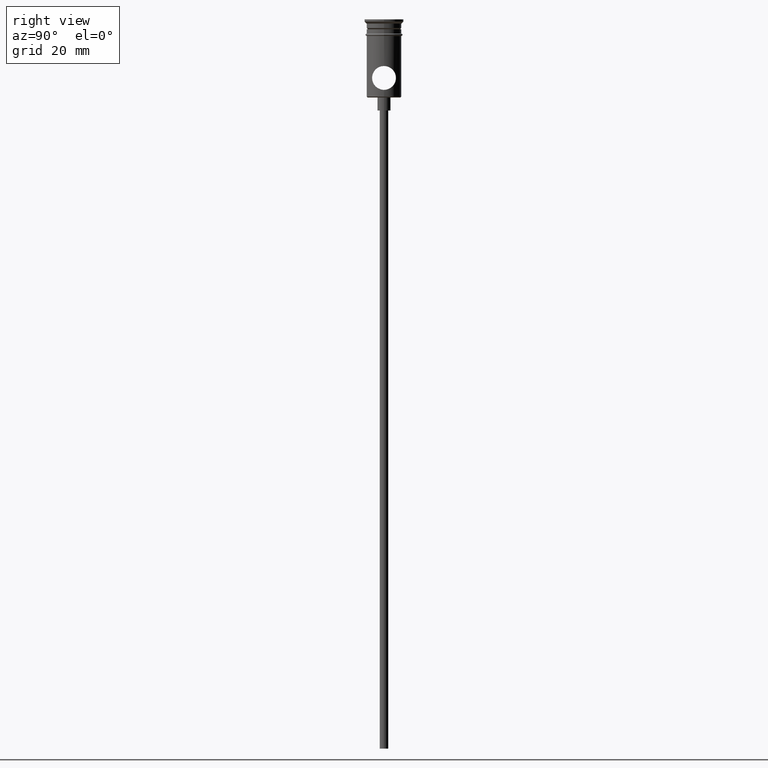
[diagram: clean part render]
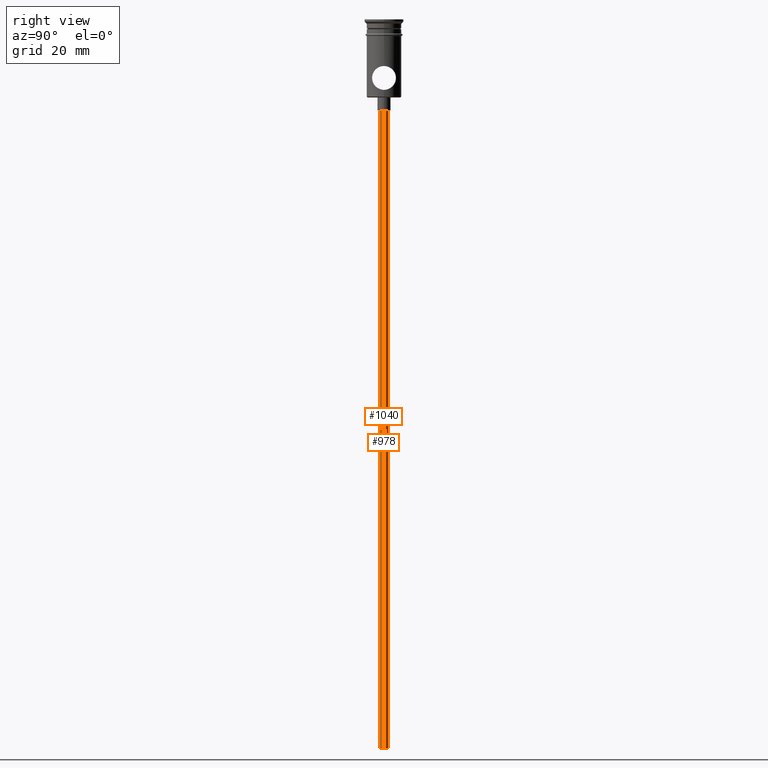
[diagram: same view with one multi-face feature highlighted, each face labeled with its STEP entity id]
A machine part, right view. The highlighted faces form ONE feature: a constant-radius fillet chain: 2 tangent blend faces with common blend radius 1 mm. The faces share edges in the B-rep.
Their STEP definitions:
[1] entity #978 (Cylinder):
#11 = CYLINDRICAL_SURFACE ( 'NONE', #684, 0.9999999999999997780 ) ;
#56 = VERTEX_POINT ( 'NONE', #763 ) ;
#58 = CIRCLE ( 'NONE', #896, 0.9999999999999997780 ) ;
#62 = EDGE_LOOP ( 'NONE', ( #294, #925, #441, #641 ) ) ;
#159 = CARTESIAN_POINT ( 'NONE',  ( 0.000000000000000000, 0.000000000000000000, -20.99999999999999645 ) ) ;
#237 = VECTOR ( 'NONE', #962, 1000.000000000000000 ) ;
#294 = ORIENTED_EDGE ( 'NONE', *, *, #1046, .F. ) ;
#335 = DIRECTION ( 'NONE',  ( -0.000000000000000000, -0.000000000000000000, 1.000000000000000000 ) ) ;
#424 = CARTESIAN_POINT ( 'NONE',  ( 0.000000000000000000, 0.000000000000000000, -167.9999999999999716 ) ) ;
#441 = ORIENTED_EDGE ( 'NONE', *, *, #1384, .T. ) ;
#496 = VECTOR ( 'NONE', #869, 1000.000000000000000 ) ;
#524 = DIRECTION ( 'NONE',  ( 0.000000000000000000, 0.000000000000000000, -1.000000000000000000 ) ) ;
#531 = CARTESIAN_POINT ( 'NONE',  ( -0.9999999999999997780, 1.224646799147352961E-16, -167.9999999999999716 ) ) ;
#532 = VERTEX_POINT ( 'NONE', #557 ) ;
#548 = AXIS2_PLACEMENT_3D ( 'NONE', #159, #583, #599 ) ;
#557 = CARTESIAN_POINT ( 'NONE',  ( -0.9999999999999997780, 1.224646799147352961E-16, -167.9999999999999716 ) ) ;
#564 = FACE_OUTER_BOUND ( 'NONE', #62, .T. ) ;
#583 = DIRECTION ( 'NONE',  ( 0.000000000000000000, 0.000000000000000000, -1.000000000000000000 ) ) ;
#599 = DIRECTION ( 'NONE',  ( -1.000000000000000000, 0.000000000000000000, 0.000000000000000000 ) ) ;
#641 = ORIENTED_EDGE ( 'NONE', *, *, #1075, .F. ) ;
#684 = AXIS2_PLACEMENT_3D ( 'NONE', #1331, #335, #1021 ) ;
#685 = CARTESIAN_POINT ( 'NONE',  ( -0.9999999999999997780, 1.224646799147352961E-16, -20.99999999999999645 ) ) ;
#763 = CARTESIAN_POINT ( 'NONE',  ( 0.9999999999999997780, 0.000000000000000000, -20.99999999999999645 ) ) ;
#784 = CARTESIAN_POINT ( 'NONE',  ( 0.9999999999999997780, 0.000000000000000000, -167.9999999999999716 ) ) ;
#835 = LINE ( 'NONE', #852, #496 ) ;
#852 = CARTESIAN_POINT ( 'NONE',  ( 0.9999999999999997780, 0.000000000000000000, -167.9999999999999716 ) ) ;
#855 = VERTEX_POINT ( 'NONE', #784 ) ;
#860 = LINE ( 'NONE', #531, #237 ) ;
#869 = DIRECTION ( 'NONE',  ( -0.000000000000000000, -0.000000000000000000, 1.000000000000000000 ) ) ;
#896 = AXIS2_PLACEMENT_3D ( 'NONE', #424, #524, #1191 ) ;
#925 = ORIENTED_EDGE ( 'NONE', *, *, #1165, .T. ) ;
#962 = DIRECTION ( 'NONE',  ( -0.000000000000000000, -0.000000000000000000, 1.000000000000000000 ) ) ;
#978 = ADVANCED_FACE ( 'NONE', ( #564 ), #11, .T. ) ;
#1021 = DIRECTION ( 'NONE',  ( 1.000000000000000000, 0.000000000000000000, 0.000000000000000000 ) ) ;
#1029 = VERTEX_POINT ( 'NONE', #685 ) ;
#1046 = EDGE_CURVE ( 'NONE', #532, #855, #58, .T. ) ;
#1075 = EDGE_CURVE ( 'NONE', #855, #56, #835, .T. ) ;
#1165 = EDGE_CURVE ( 'NONE', #532, #1029, #860, .T. ) ;
#1191 = DIRECTION ( 'NONE',  ( -1.000000000000000000, 0.000000000000000000, 0.000000000000000000 ) ) ;
#1301 = CIRCLE ( 'NONE', #548, 0.9999999999999997780 ) ;
#1331 = CARTESIAN_POINT ( 'NONE',  ( 0.000000000000000000, 0.000000000000000000, -167.9999999999999716 ) ) ;
#1384 = EDGE_CURVE ( 'NONE', #1029, #56, #1301, .T. ) ;
[2] entity #1040 (Cylinder):
#25 = FACE_OUTER_BOUND ( 'NONE', #1003, .T. ) ;
#56 = VERTEX_POINT ( 'NONE', #763 ) ;
#94 = DIRECTION ( 'NONE',  ( -0.000000000000000000, -0.000000000000000000, 1.000000000000000000 ) ) ;
#150 = AXIS2_PLACEMENT_3D ( 'NONE', #1236, #94, #539 ) ;
#217 = CIRCLE ( 'NONE', #658, 0.9999999999999997780 ) ;
#237 = VECTOR ( 'NONE', #962, 1000.000000000000000 ) ;
#337 = ORIENTED_EDGE ( 'NONE', *, *, #1174, .F. ) ;
#496 = VECTOR ( 'NONE', #869, 1000.000000000000000 ) ;
#531 = CARTESIAN_POINT ( 'NONE',  ( -0.9999999999999997780, 1.224646799147352961E-16, -167.9999999999999716 ) ) ;
#532 = VERTEX_POINT ( 'NONE', #557 ) ;
#539 = DIRECTION ( 'NONE',  ( 1.000000000000000000, 0.000000000000000000, 0.000000000000000000 ) ) ;
#557 = CARTESIAN_POINT ( 'NONE',  ( -0.9999999999999997780, 1.224646799147352961E-16, -167.9999999999999716 ) ) ;
#658 = AXIS2_PLACEMENT_3D ( 'NONE', #738, #1278, #1081 ) ;
#685 = CARTESIAN_POINT ( 'NONE',  ( -0.9999999999999997780, 1.224646799147352961E-16, -20.99999999999999645 ) ) ;
#705 = CIRCLE ( 'NONE', #989, 0.9999999999999997780 ) ;
#711 = EDGE_CURVE ( 'NONE', #56, #1029, #217, .T. ) ;
#738 = CARTESIAN_POINT ( 'NONE',  ( 0.000000000000000000, 0.000000000000000000, -20.99999999999999645 ) ) ;
#763 = CARTESIAN_POINT ( 'NONE',  ( 0.9999999999999997780, 0.000000000000000000, -20.99999999999999645 ) ) ;
#784 = CARTESIAN_POINT ( 'NONE',  ( 0.9999999999999997780, 0.000000000000000000, -167.9999999999999716 ) ) ;
#835 = LINE ( 'NONE', #852, #496 ) ;
#852 = CARTESIAN_POINT ( 'NONE',  ( 0.9999999999999997780, 0.000000000000000000, -167.9999999999999716 ) ) ;
#855 = VERTEX_POINT ( 'NONE', #784 ) ;
#860 = LINE ( 'NONE', #531, #237 ) ;
#869 = DIRECTION ( 'NONE',  ( -0.000000000000000000, -0.000000000000000000, 1.000000000000000000 ) ) ;
#909 = CYLINDRICAL_SURFACE ( 'NONE', #150, 0.9999999999999997780 ) ;
#962 = DIRECTION ( 'NONE',  ( -0.000000000000000000, -0.000000000000000000, 1.000000000000000000 ) ) ;
#970 = ORIENTED_EDGE ( 'NONE', *, *, #711, .T. ) ;
#989 = AXIS2_PLACEMENT_3D ( 'NONE', #1282, #1176, #1409 ) ;
#1003 = EDGE_LOOP ( 'NONE', ( #1360, #337, #1342, #970 ) ) ;
#1029 = VERTEX_POINT ( 'NONE', #685 ) ;
#1040 = ADVANCED_FACE ( 'NONE', ( #25 ), #909, .T. ) ;
#1075 = EDGE_CURVE ( 'NONE', #855, #56, #835, .T. ) ;
#1081 = DIRECTION ( 'NONE',  ( -1.000000000000000000, 0.000000000000000000, 0.000000000000000000 ) ) ;
#1165 = EDGE_CURVE ( 'NONE', #532, #1029, #860, .T. ) ;
#1174 = EDGE_CURVE ( 'NONE', #855, #532, #705, .T. ) ;
#1176 = DIRECTION ( 'NONE',  ( 0.000000000000000000, 0.000000000000000000, -1.000000000000000000 ) ) ;
#1236 = CARTESIAN_POINT ( 'NONE',  ( 0.000000000000000000, 0.000000000000000000, -167.9999999999999716 ) ) ;
#1278 = DIRECTION ( 'NONE',  ( 0.000000000000000000, 0.000000000000000000, -1.000000000000000000 ) ) ;
#1282 = CARTESIAN_POINT ( 'NONE',  ( 0.000000000000000000, 0.000000000000000000, -167.9999999999999716 ) ) ;
#1342 = ORIENTED_EDGE ( 'NONE', *, *, #1075, .T. ) ;
#1360 = ORIENTED_EDGE ( 'NONE', *, *, #1165, .F. ) ;
#1409 = DIRECTION ( 'NONE',  ( -1.000000000000000000, 0.000000000000000000, 0.000000000000000000 ) ) ;